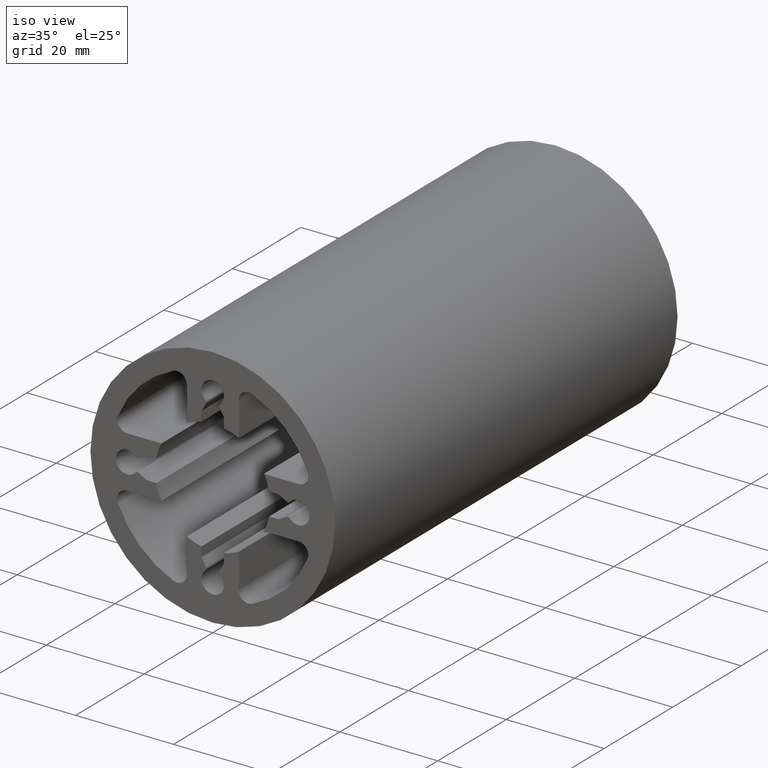
[diagram: clean part render]
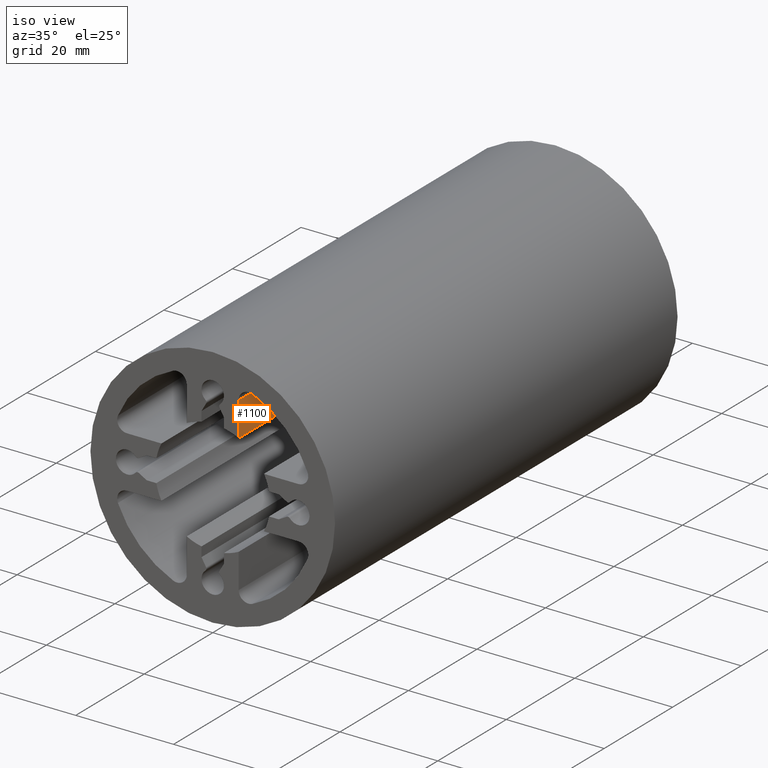
[diagram: same view with one face highlighted and labeled with its STEP entity id]
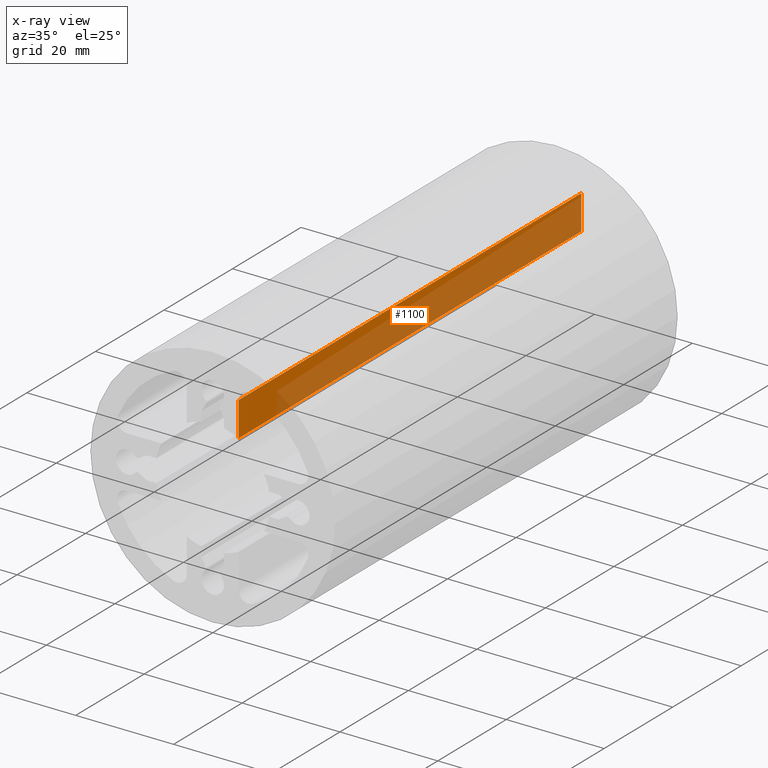
[diagram: x-ray of the same camera — body ghosted, the highlighted face saturated]
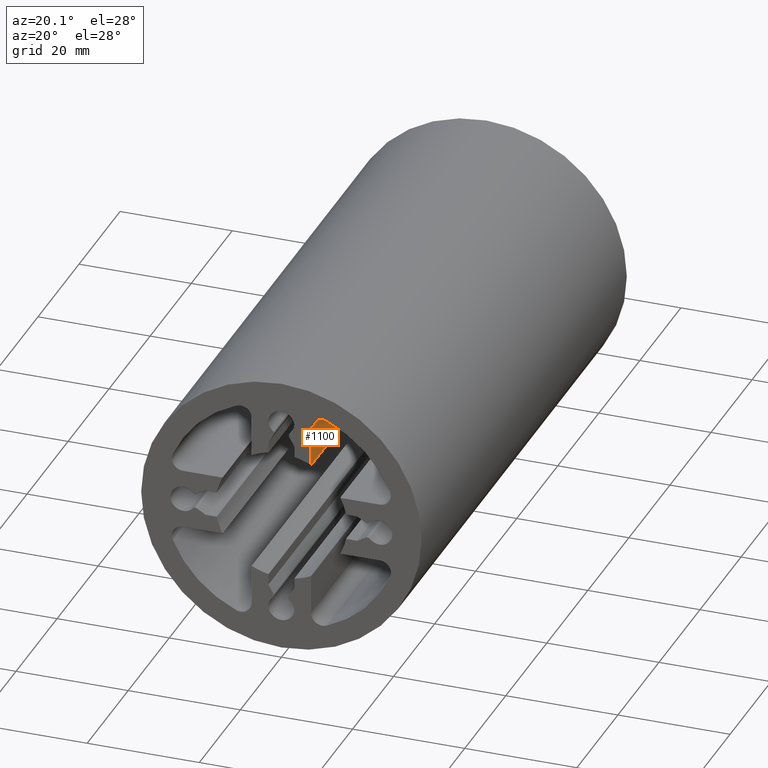
[diagram: same view with one face highlighted and labeled with its STEP entity id]
A machine part, iso view. The second image highlights one B-rep face of the part: STEP entity #1100.
The next image is the same camera in x-ray: the body ghosted, the highlighted face saturated — about 69% of this face is hidden behind the body in this view.
A second angle (auxiliary view) of the same face is appended — the face is thin or edge-on in the first view.
In plain terms, the highlighted planar face has unit normal (-1, 0, 0).
Its self-contained STEP definition (entity closure, byte-faithful):
#17=PLANE('',#1184);
#44=FACE_OUTER_BOUND('',#103,.T.);
#103=EDGE_LOOP('',(#728,#729,#730,#731));
#163=LINE('',#1669,#268);
#165=LINE('',#1675,#270);
#166=LINE('',#1677,#271);
#167=LINE('',#1678,#272);
#268=VECTOR('',#1312,10.);
#270=VECTOR('',#1318,10.);
#271=VECTOR('',#1319,10.);
#272=VECTOR('',#1320,10.);
#439=VERTEX_POINT('',#1665);
#441=VERTEX_POINT('',#1668);
#443=VERTEX_POINT('',#1674);
#444=VERTEX_POINT('',#1676);
#554=EDGE_CURVE('',#439,#441,#163,.T.);
#557=EDGE_CURVE('',#443,#439,#165,.T.);
#558=EDGE_CURVE('',#443,#444,#166,.T.);
#559=EDGE_CURVE('',#441,#444,#167,.T.);
#728=ORIENTED_EDGE('',*,*,#557,.F.);
#729=ORIENTED_EDGE('',*,*,#558,.T.);
#730=ORIENTED_EDGE('',*,*,#559,.F.);
#731=ORIENTED_EDGE('',*,*,#554,.F.);
#1100=ADVANCED_FACE('',(#44),#17,.F.);
#1184=AXIS2_PLACEMENT_3D('',#1673,#1316,#1317);
#1312=DIRECTION('',(0.,1.,0.));
#1316=DIRECTION('center_axis',(-1.,0.,0.));
#1317=DIRECTION('ref_axis',(0.,0.,1.));
#1318=DIRECTION('',(0.,0.,1.));
#1319=DIRECTION('',(0.,1.,0.));
#1320=DIRECTION('',(0.,0.,-1.));
#1665=CARTESIAN_POINT('',(5.29999999999998,0.,17.5416646872525));
#1668=CARTESIAN_POINT('',(5.29999999999998,100.,17.5416646872525));
#1669=CARTESIAN_POINT('',(5.29999999999998,0.,17.5416646872525));
#1673=CARTESIAN_POINT('Origin',(5.29999999999998,0.,10.4867773886929));
#1674=CARTESIAN_POINT('',(5.29999999999998,0.,10.4867773886929));
#1675=CARTESIAN_POINT('',(5.29999999999998,0.,5.24338869434644));
#1676=CARTESIAN_POINT('',(5.29999999999998,100.,10.4867773886929));
#1677=CARTESIAN_POINT('',(5.29999999999998,0.,10.4867773886929));
#1678=CARTESIAN_POINT('',(5.29999999999998,100.,5.24338869434644));